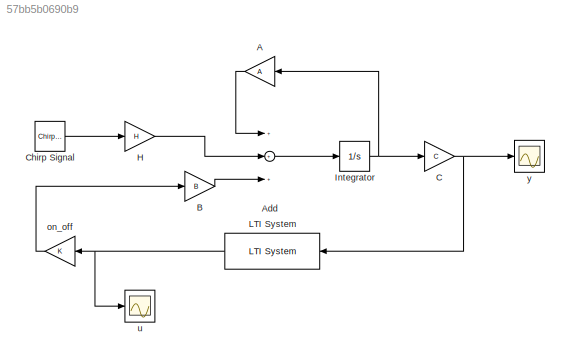
MODEL slx_57bb5b0690b9
KIND model
CONFIG AbsTol = auto
CONFIG FixedStep = 1e-4
CONFIG MaxStep = auto
CONFIG MinStep = auto
CONFIG RelTol = 1e-3
CONFIG SampleTimeConstraint = Unconstrained
CONFIG Solver = ode5
CONFIG SolverMode = Auto
CONFIG SolverName = ode5
CONFIG StartTime = 0.0
CONFIG StopTime = 14
BLOCK [Gain] A
  Gain = A
  Multiplication = Matrix(K*u)
  OutDataTypeStr = Inherit: Inherit via internal rule
  ParamDataTypeStr = Inherit: Inherit via internal rule
  SaturateOnIntegerOverflow = off
BLOCK [Sum] Add
  InputSameDT = off
  Inputs = +++
  OutDataTypeStr = Inherit: Inherit via internal rule
  Ports = [3, 1]
  SaturateOnIntegerOverflow = off
BLOCK [Gain] B
  Gain = B
  Multiplication = Matrix(K*u)
  OutDataTypeStr = Inherit: Inherit via internal rule
  ParamDataTypeStr = Inherit: Inherit via internal rule
  SaturateOnIntegerOverflow = off
BLOCK [Gain] C
  Gain = C
  Multiplication = Matrix(K*u)
  OutDataTypeStr = Inherit: Inherit via internal rule
  ParamDataTypeStr = Inherit: Inherit via internal rule
  SaturateOnIntegerOverflow = off
BLOCK [Reference] Chirp Signal  REF=simulink/Sources/Chirp Signal
  Ports = [0, 1]
  SourceBlock = simulink/Sources/Chirp Signal
  SourceType = chirp
  T = 14
  VectorParams1D = on
  f1 = 0.1
  f2 = 140
BLOCK [Gain] H
  Gain = H
  Multiplication = Matrix(K*u)
  OutDataTypeStr = Inherit: Inherit via internal rule
  ParamDataTypeStr = Inherit: Inherit via internal rule
  SaturateOnIntegerOverflow = off
BLOCK [Integrator] Integrator
  Ports = [1, 1]
BLOCK [Reference] LTI System  REF=cstblocks/LTI System
  IC = []
  Ports = [1, 1]
  SourceBlock = cstblocks/LTI System
  SourceType = LTI Block
  sys = rlqg
BLOCK [Gain] on_off
  OutDataTypeStr = Inherit: Inherit via internal rule
  ParamDataTypeStr = Inherit: Inherit via internal rule
  SaturateOnIntegerOverflow = off
BLOCK [Scope] u
  Floating = off
  LimitDataPoints = off
  NumInputPorts = 1
  Ports = [1]
  SaveName = ScopeData1
BLOCK [Scope] y
  Floating = off
  LimitDataPoints = off
  NumInputPorts = 1
  Ports = [1]
LINE A:1 -> Add:1
LINE Add:1 -> Integrator:1
LINE B:1 -> Add:3
NET C:1 -> LTI System:1, y:1
LINE Chirp Signal:1 -> H:1
LINE H:1 -> Add:2
NET Integrator:1 -> A:1, C:1
NET LTI System:1 -> on_off:1, u:1
LINE on_off:1 -> B:1
note: NET lines group one-source signal fan-out (src -> all destinations, sorted); 1:1 wires keep LINE
